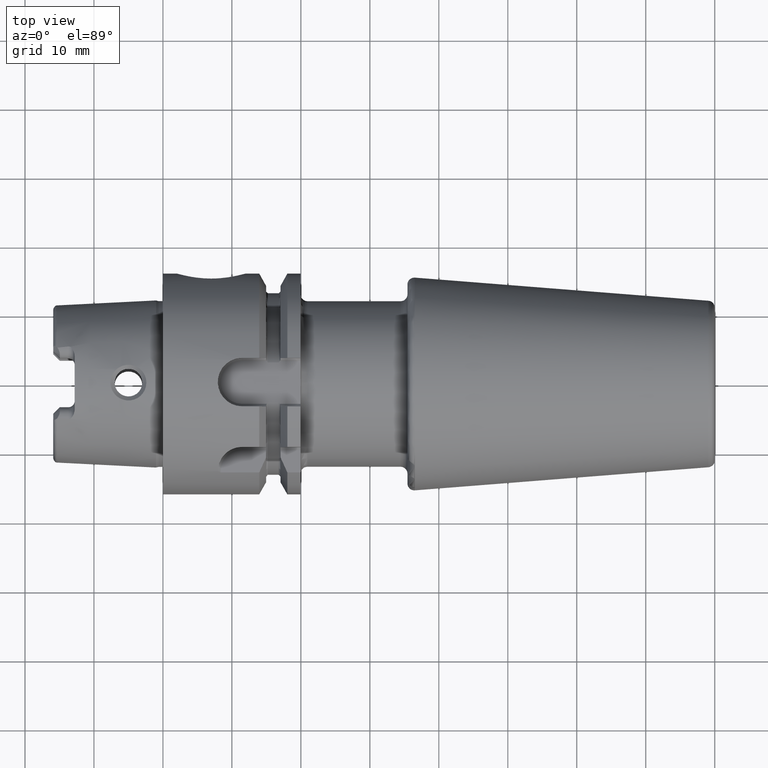
[diagram: clean part render]
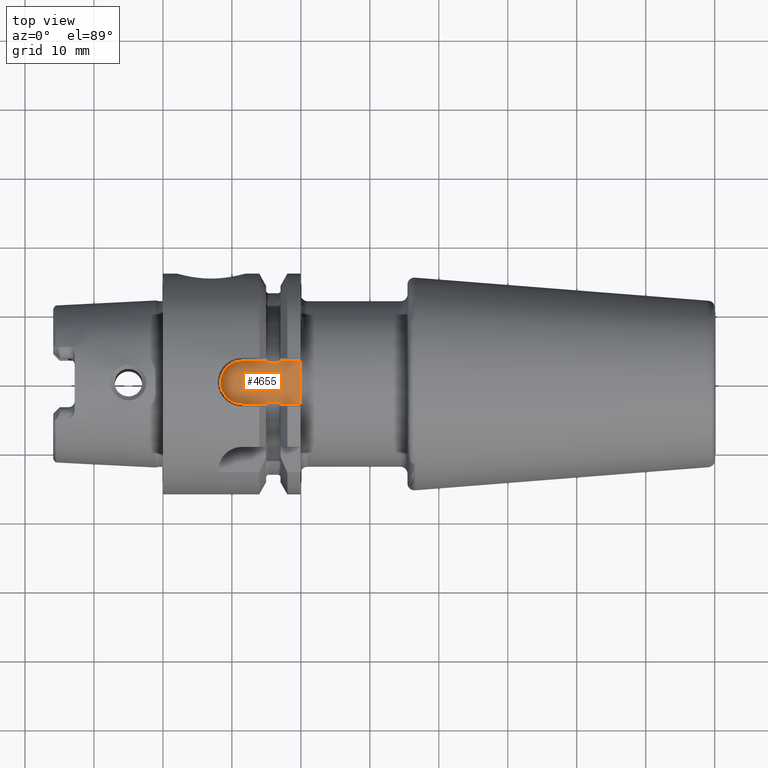
[diagram: same view with one face highlighted and labeled with its STEP entity id]
A machine part, top view. The second image highlights one B-rep face of the part: STEP entity #4655.
In plain terms, the highlighted planar face has unit normal (0, 0, 1).
Its self-contained STEP definition (entity closure, byte-faithful):
#1152=DIRECTION('',(0.E0,9.999999999831E-1,5.816514443472E-6));
#1153=VECTOR('',#1152,1.505136535210E0);
#1154=CARTESIAN_POINT('',(1.995E1,1.609363464815E0,1.289999124535E1));
#1155=LINE('',#1154,#1153);
#1184=DIRECTION('',(0.E0,9.999999999874E-1,-5.013999584774E-6));
#1185=VECTOR('',#1184,1.505180749383E0);
#1186=CARTESIAN_POINT('',(1.995E1,-3.1145E0,1.29E1));
#1187=LINE('',#1186,#1185);
#1215=CARTESIAN_POINT('',(1.995E1,1.609363464815E0,1.289999124535E1));
#1216=CARTESIAN_POINT('',(1.995E1,1.431660538431E0,1.289999124535E1));
#1217=CARTESIAN_POINT('',(1.995141744770E1,1.075469728313E0,1.290000408550E1));
#1218=CARTESIAN_POINT('',(1.995422008015E1,5.373732169063E-1,1.289999883271E1));
#1219=CARTESIAN_POINT('',(1.995501258609E1,1.791932804702E-1,1.29E1));
#1220=CARTESIAN_POINT('',(1.995501256289E1,-1.661602634047E-5,1.29E1));
#1232=CARTESIAN_POINT('',(1.995501256289E1,-1.661602634047E-5,1.29E1));
#1233=CARTESIAN_POINT('',(1.995501253969E1,-1.792294337541E-1,1.29E1));
#1234=CARTESIAN_POINT('',(1.995421991724E1,-5.374049310996E-1,
1.289999899374E1));
#1235=CARTESIAN_POINT('',(1.995141729180E1,-1.075518852812E0,1.290000352192E1));
#1236=CARTESIAN_POINT('',(1.995E1,-1.431627489715E0,1.289999245302E1));
#1237=CARTESIAN_POINT('',(1.995E1,-1.609319250636E0,1.289999245302E1));
#1383=DIRECTION('',(-1.E0,0.E0,0.E0));
#1384=VECTOR('',#1383,3.018484572018E0);
#1385=CARTESIAN_POINT('',(1.995E1,-3.1145E0,1.29E1));
#1386=LINE('',#1385,#1384);
#1387=CARTESIAN_POINT('',(1.67875E1,-2.913867704615E0,1.29E1));
#1388=CARTESIAN_POINT('',(1.679804377734E1,-2.913867704615E0,1.29E1));
#1389=CARTESIAN_POINT('',(1.681758944231E1,-2.919841051304E0,1.29E1));
#1390=CARTESIAN_POINT('',(1.684264731296E1,-2.940074130288E0,1.29E1));
#1391=CARTESIAN_POINT('',(1.686324211020E1,-2.965504235160E0,1.29E1));
#1392=CARTESIAN_POINT('',(1.688190197218E1,-2.995611038065E0,1.29E1));
#1393=CARTESIAN_POINT('',(1.689925742948E1,-3.030213370819E0,1.29E1));
#1394=CARTESIAN_POINT('',(1.691584136972E1,-3.069683904292E0,1.29E1));
#1395=CARTESIAN_POINT('',(1.692636880646E1,-3.099045423041E0,1.29E1));
#1396=CARTESIAN_POINT('',(1.693151542798E1,-3.1145E0,1.29E1));
#1398=CARTESIAN_POINT('',(1.506848457202E1,-3.1145E0,1.29E1));
#1399=CARTESIAN_POINT('',(1.507419126973E1,-3.097363593395E0,1.29E1));
#1400=CARTESIAN_POINT('',(1.508599967900E1,-3.064656028968E0,1.29E1));
#1401=CARTESIAN_POINT('',(1.510532372866E1,-3.020018429946E0,1.29E1));
#1402=CARTESIAN_POINT('',(1.512629838323E1,-2.981058043235E0,1.29E1));
#1403=CARTESIAN_POINT('',(1.514963324948E1,-2.947989934647E0,1.29E1));
#1404=CARTESIAN_POINT('',(1.517817792495E1,-2.921642200573E0,1.29E1));
#1405=CARTESIAN_POINT('',(1.520045630159E1,-2.913867704615E0,1.29E1));
#1406=CARTESIAN_POINT('',(1.52125E1,-2.913867704615E0,1.29E1));
#1408=DIRECTION('',(-9.999999999993E-1,8.384996727479E-7,8.382504913023E-7));
#1409=VECTOR('',#1408,3.603984557047E0);
#1410=CARTESIAN_POINT('',(1.506848457202E1,-3.1145E0,1.29E1));
#1411=LINE('',#1410,#1409);
#1412=CARTESIAN_POINT('',(1.14645E1,0.E0,1.290000715154E1));
#1413=DIRECTION('',(0.E0,0.E0,-1.E0));
#1414=DIRECTION('',(0.E0,-1.E0,0.E0));
#1415=AXIS2_PLACEMENT_3D('',#1412,#1413,#1414);
#1417=DIRECTION('',(9.999999999993E-1,8.384561466338E-7,-8.382940178897E-7));
#1418=VECTOR('',#1417,3.603984556030E0);
#1419=CARTESIAN_POINT('',(1.146450001599E1,3.114496978217E0,1.290000302120E1));
#1420=LINE('',#1419,#1418);
#1421=CARTESIAN_POINT('',(1.52125E1,2.913867704615E0,1.29E1));
#1422=CARTESIAN_POINT('',(1.519935760711E1,2.913867704615E0,1.29E1));
#1423=CARTESIAN_POINT('',(1.517570456536E1,2.923314081271E0,1.29E1));
#1424=CARTESIAN_POINT('',(1.514884798910E1,2.949113313559E0,1.29E1));
#1425=CARTESIAN_POINT('',(1.512532339630E1,2.982531446121E0,1.29E1));
#1426=CARTESIAN_POINT('',(1.510406169897E1,3.022711685466E0,1.29E1));
#1427=CARTESIAN_POINT('',(1.508553093664E1,3.065956196770E0,1.29E1));
#1428=CARTESIAN_POINT('',(1.507402006656E1,3.097877692315E0,1.29E1));
#1429=CARTESIAN_POINT('',(1.506848457202E1,3.1145E0,1.29E1));
#1431=CARTESIAN_POINT('',(1.693151542798E1,3.1145E0,1.29E1));
#1432=CARTESIAN_POINT('',(1.692650337206E1,3.099449504501E0,1.29E1));
#1433=CARTESIAN_POINT('',(1.691620662164E1,3.070668301576E0,1.29E1));
#1434=CARTESIAN_POINT('',(1.689987891903E1,3.031593358219E0,1.29E1));
#1435=CARTESIAN_POINT('',(1.688236893608E1,2.996366941418E0,1.29E1));
#1436=CARTESIAN_POINT('',(1.686258400474E1,2.964398341535E0,1.29E1));
#1437=CARTESIAN_POINT('',(1.684091616515E1,2.938265090043E0,1.29E1));
#1438=CARTESIAN_POINT('',(1.681599730418E1,2.919113546640E0,1.29E1));
#1439=CARTESIAN_POINT('',(1.679736069221E1,2.913867704615E0,1.29E1));
#1440=CARTESIAN_POINT('',(1.67875E1,2.913867704615E0,1.29E1));
#1442=DIRECTION('',(1.E0,0.E0,0.E0));
#1443=VECTOR('',#1442,3.018484572018E0);
#1444=CARTESIAN_POINT('',(1.693151542798E1,3.1145E0,1.29E1));
#1445=LINE('',#1444,#1443);
#1475=DIRECTION('',(-1.E0,0.E0,0.E0));
#1476=VECTOR('',#1475,1.575E0);
#1477=CARTESIAN_POINT('',(1.67875E1,2.913867704615E0,1.29E1));
#1478=LINE('',#1477,#1476);
#1488=DIRECTION('',(1.E0,0.E0,0.E0));
#1489=VECTOR('',#1488,1.575E0);
#1490=CARTESIAN_POINT('',(1.52125E1,-2.913867704615E0,1.29E1));
#1491=LINE('',#1490,#1489);
#2937=CARTESIAN_POINT('',(1.52125E1,-2.913867704615E0,1.29E1));
#2939=VERTEX_POINT('',#2937);
#2940=CARTESIAN_POINT('',(1.52125E1,2.913867704615E0,1.29E1));
#2942=VERTEX_POINT('',#2940);
#2949=CARTESIAN_POINT('',(1.67875E1,-2.913867704615E0,1.29E1));
#2951=VERTEX_POINT('',#2949);
#2952=CARTESIAN_POINT('',(1.67875E1,2.913867704615E0,1.29E1));
#2954=VERTEX_POINT('',#2952);
#2960=VERTEX_POINT('',#1429);
#2961=VERTEX_POINT('',#1398);
#2962=VERTEX_POINT('',#1431);
#2963=VERTEX_POINT('',#1396);
#2988=CARTESIAN_POINT('',(1.14645E1,-3.114489022604E0,1.290000715154E1));
#2989=CARTESIAN_POINT('',(1.14645E1,3.114489022604E0,1.290000715154E1));
#2990=VERTEX_POINT('',#2988);
#2991=VERTEX_POINT('',#2989);
#3000=CARTESIAN_POINT('',(1.995E1,-3.1145E0,1.29E1));
#3002=VERTEX_POINT('',#3000);
#3005=CARTESIAN_POINT('',(1.995E1,3.1145E0,1.29E1));
#3007=VERTEX_POINT('',#3005);
#3186=CARTESIAN_POINT('',(1.995501256289E1,-1.661602633601E-5,1.29E1));
#3188=VERTEX_POINT('',#3186);
#3202=CARTESIAN_POINT('',(1.995E1,-1.609084980067E0,1.290003277232E1));
#3203=VERTEX_POINT('',#3202);
#3206=CARTESIAN_POINT('',(1.995E1,1.609363464815E0,1.289999124535E1));
#3207=VERTEX_POINT('',#3206);
#4626=CARTESIAN_POINT('',(0.E0,0.E0,1.29E1));
#4627=DIRECTION('',(0.E0,0.E0,1.E0));
#4628=DIRECTION('',(1.E0,0.E0,0.E0));
#4629=AXIS2_PLACEMENT_3D('',#4626,#4627,#4628);
#4630=PLANE('',#4629);
#4631=ORIENTED_EDGE('',*,*,#4336,.F.);
#4632=ORIENTED_EDGE('',*,*,#4394,.T.);
#4633=ORIENTED_EDGE('',*,*,#4410,.T.);
#4634=ORIENTED_EDGE('',*,*,#4370,.F.);
#4635=ORIENTED_EDGE('',*,*,#4244,.T.);
#4637=ORIENTED_EDGE('',*,*,#4636,.F.);
#4639=ORIENTED_EDGE('',*,*,#4638,.F.);
#4640=ORIENTED_EDGE('',*,*,#4281,.F.);
#4641=ORIENTED_EDGE('',*,*,#4232,.T.);
#4643=ORIENTED_EDGE('',*,*,#4642,.T.);
#4645=ORIENTED_EDGE('',*,*,#4644,.T.);
#4646=ORIENTED_EDGE('',*,*,#4263,.F.);
#4648=ORIENTED_EDGE('',*,*,#4647,.F.);
#4650=ORIENTED_EDGE('',*,*,#4649,.F.);
#4652=ORIENTED_EDGE('',*,*,#4651,.T.);
#4653=EDGE_LOOP('',(#4631,#4632,#4633,#4634,#4635,#4637,#4639,#4640,#4641,#4643,
#4645,#4646,#4648,#4650,#4652));
#4654=FACE_OUTER_BOUND('',#4653,.F.);
#4655=ADVANCED_FACE('',(#4654),#4630,.T.);
#1221=B_SPLINE_CURVE_WITH_KNOTS('',3,(#1215,#1216,#1217,#1218,#1219,#1220),
.UNSPECIFIED.,.F.,.F.,(4,1,1,4),(0.E0,3.333333333333E-1,6.666666666667E-1,1.E0),
.UNSPECIFIED.);
#1238=B_SPLINE_CURVE_WITH_KNOTS('',3,(#1232,#1233,#1234,#1235,#1236,#1237),
.UNSPECIFIED.,.F.,.F.,(4,1,1,4),(0.E0,3.333333333333E-1,6.666666666667E-1,1.E0),
.UNSPECIFIED.);
#1397=B_SPLINE_CURVE_WITH_KNOTS('',3,(#1387,#1388,#1389,#1390,#1391,#1392,#1393,
#1394,#1395,#1396),.UNSPECIFIED.,.F.,.F.,(4,1,1,1,1,1,1,4),(0.E0,
1.428571428571E-1,2.857142857143E-1,4.285714285714E-1,5.714285714286E-1,
7.142857142857E-1,8.571428571429E-1,1.E0),.UNSPECIFIED.);
#1407=B_SPLINE_CURVE_WITH_KNOTS('',3,(#1398,#1399,#1400,#1401,#1402,#1403,#1404,
#1405,#1406),.UNSPECIFIED.,.F.,.F.,(4,1,1,1,1,1,4),(0.E0,1.666666666667E-1,
3.333333333333E-1,5.E-1,6.666666666667E-1,8.333333333333E-1,1.E0),
.UNSPECIFIED.);
#1416=CIRCLE('',#1415,3.114489022604E0);
#1430=B_SPLINE_CURVE_WITH_KNOTS('',3,(#1421,#1422,#1423,#1424,#1425,#1426,#1427,
#1428,#1429),.UNSPECIFIED.,.F.,.F.,(4,1,1,1,1,1,4),(0.E0,1.666666666667E-1,
3.333333333333E-1,5.E-1,6.666666666667E-1,8.333333333333E-1,1.E0),
.UNSPECIFIED.);
#1441=B_SPLINE_CURVE_WITH_KNOTS('',3,(#1431,#1432,#1433,#1434,#1435,#1436,#1437,
#1438,#1439,#1440),.UNSPECIFIED.,.F.,.F.,(4,1,1,1,1,1,1,4),(0.E0,
1.428571428571E-1,2.857142857143E-1,4.285714285714E-1,5.714285714286E-1,
7.142857142857E-1,8.571428571429E-1,1.E0),.UNSPECIFIED.);
#4232=EDGE_CURVE('',#2961,#2990,#1411,.T.);
#4244=EDGE_CURVE('',#3002,#2963,#1386,.T.);
#4263=EDGE_CURVE('',#2942,#2960,#1430,.T.);
#4281=EDGE_CURVE('',#2961,#2939,#1407,.T.);
#4336=EDGE_CURVE('',#3207,#3007,#1155,.T.);
#4370=EDGE_CURVE('',#3002,#3203,#1187,.T.);
#4394=EDGE_CURVE('',#3207,#3188,#1221,.T.);
#4410=EDGE_CURVE('',#3188,#3203,#1238,.T.);
#4636=EDGE_CURVE('',#2951,#2963,#1397,.T.);
#4638=EDGE_CURVE('',#2939,#2951,#1491,.T.);
#4642=EDGE_CURVE('',#2990,#2991,#1416,.T.);
#4644=EDGE_CURVE('',#2991,#2960,#1420,.T.);
#4647=EDGE_CURVE('',#2954,#2942,#1478,.T.);
#4649=EDGE_CURVE('',#2962,#2954,#1441,.T.);
#4651=EDGE_CURVE('',#2962,#3007,#1445,.T.);